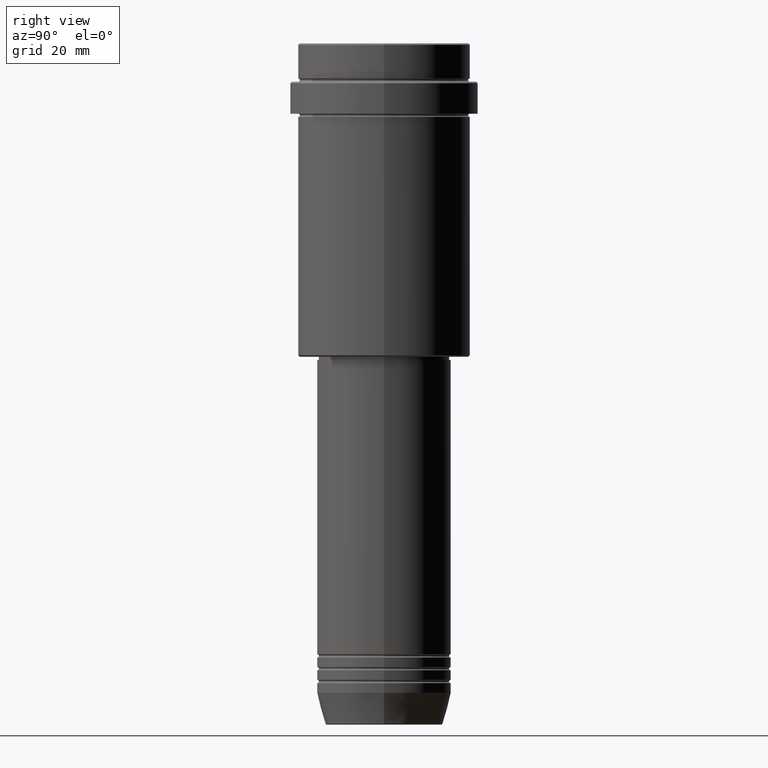
[diagram: clean part render]
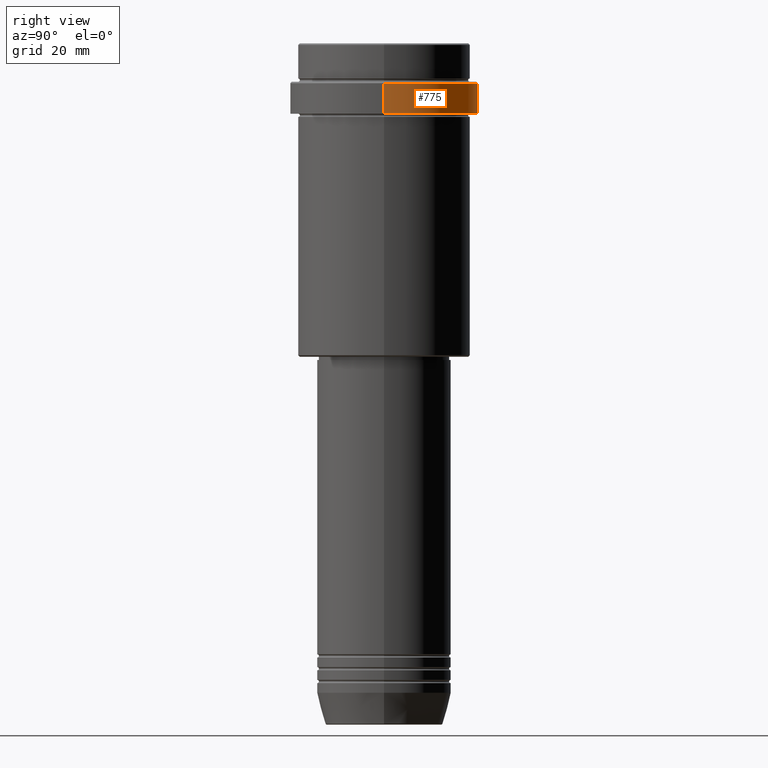
[diagram: same view with one face highlighted and labeled with its STEP entity id]
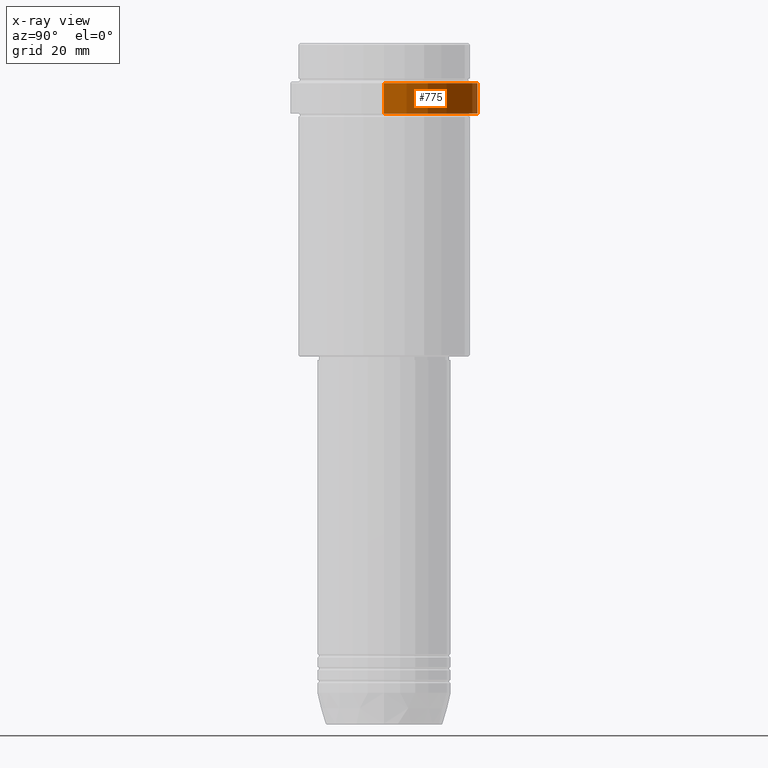
[diagram: x-ray of the same camera — body ghosted, the highlighted face saturated]
A machine part, right view. The second image highlights one B-rep face of the part: STEP entity #775.
The next image is the same camera in x-ray: the body ghosted, the highlighted face saturated — about 0% of this face is hidden behind the body in this view.
In plain terms, the highlighted cylindrical surface (partial cylindrical patch) has radius 29.5 mm, axis along (-0, -0, 1).
Its self-contained STEP definition (entity closure, byte-faithful):
#13 = DIRECTION ( 'NONE',  ( -0.000000000000000000, -0.000000000000000000, 1.000000000000000000 ) ) ;
#57 = DIRECTION ( 'NONE',  ( -0.000000000000000000, -0.000000000000000000, 1.000000000000000000 ) ) ;
#97 = CIRCLE ( 'NONE', #1034, 29.50000000000000000 ) ;
#195 = EDGE_CURVE ( 'NONE', #314, #571, #97, .T. ) ;
#201 = VECTOR ( 'NONE', #913, 1000.000000000000000 ) ;
#259 = DIRECTION ( 'NONE',  ( -0.000000000000000000, -0.000000000000000000, 1.000000000000000000 ) ) ;
#314 = VERTEX_POINT ( 'NONE', #911 ) ;
#365 = LINE ( 'NONE', #372, #201 ) ;
#370 = CARTESIAN_POINT ( 'NONE',  ( 0.000000000000000000, 0.000000000000000000, -12.50000000000003197 ) ) ;
#372 = CARTESIAN_POINT ( 'NONE',  ( 29.50000000000000000, 0.000000000000000000, 0.000000000000000000 ) ) ;
#376 = DIRECTION ( 'NONE',  ( 1.000000000000000000, 0.000000000000000000, 0.000000000000000000 ) ) ;
#448 = CIRCLE ( 'NONE', #1001, 29.49999999999999645 ) ;
#469 = CARTESIAN_POINT ( 'NONE',  ( 0.000000000000000000, 0.000000000000000000, 0.000000000000000000 ) ) ;
#535 = ORIENTED_EDGE ( 'NONE', *, *, #1131, .F. ) ;
#554 = ORIENTED_EDGE ( 'NONE', *, *, #923, .T. ) ;
#571 = VERTEX_POINT ( 'NONE', #1094 ) ;
#630 = CARTESIAN_POINT ( 'NONE',  ( 0.000000000000000000, 0.000000000000000000, -22.00000000000000711 ) ) ;
#640 = VERTEX_POINT ( 'NONE', #1122 ) ;
#760 = CARTESIAN_POINT ( 'NONE',  ( -29.49999999999999645, 3.612708057484690815E-15, -22.00000000000000711 ) ) ;
#767 = DIRECTION ( 'NONE',  ( 1.000000000000000000, 0.000000000000000000, 0.000000000000000000 ) ) ;
#775 = ADVANCED_FACE ( 'NONE', ( #1033 ), #1353, .T. ) ;
#829 = DIRECTION ( 'NONE',  ( 0.000000000000000000, 0.000000000000000000, -1.000000000000000000 ) ) ;
#839 = CARTESIAN_POINT ( 'NONE',  ( -29.50000000000000000, 3.612708057484691604E-15, 0.000000000000000000 ) ) ;
#844 = LINE ( 'NONE', #839, #980 ) ;
#877 = ORIENTED_EDGE ( 'NONE', *, *, #195, .T. ) ;
#889 = VERTEX_POINT ( 'NONE', #760 ) ;
#911 = CARTESIAN_POINT ( 'NONE',  ( -29.50000000000000000, 3.612708057484691604E-15, -12.50000000000003197 ) ) ;
#913 = DIRECTION ( 'NONE',  ( -0.000000000000000000, -0.000000000000000000, 1.000000000000000000 ) ) ;
#923 = EDGE_CURVE ( 'NONE', #640, #889, #448, .T. ) ;
#980 = VECTOR ( 'NONE', #259, 1000.000000000000000 ) ;
#1001 = AXIS2_PLACEMENT_3D ( 'NONE', #630, #13, #767 ) ;
#1033 = FACE_OUTER_BOUND ( 'NONE', #1406, .T. ) ;
#1034 = AXIS2_PLACEMENT_3D ( 'NONE', #370, #829, #376 ) ;
#1043 = DIRECTION ( 'NONE',  ( 1.000000000000000000, 0.000000000000000000, 0.000000000000000000 ) ) ;
#1094 = CARTESIAN_POINT ( 'NONE',  ( 29.50000000000000000, 0.000000000000000000, -12.50000000000003197 ) ) ;
#1122 = CARTESIAN_POINT ( 'NONE',  ( 29.49999999999999645, 0.000000000000000000, -22.00000000000000711 ) ) ;
#1131 = EDGE_CURVE ( 'NONE', #640, #571, #365, .T. ) ;
#1211 = AXIS2_PLACEMENT_3D ( 'NONE', #469, #57, #1043 ) ;
#1254 = EDGE_CURVE ( 'NONE', #889, #314, #844, .T. ) ;
#1353 = CYLINDRICAL_SURFACE ( 'NONE', #1211, 29.50000000000000000 ) ;
#1378 = ORIENTED_EDGE ( 'NONE', *, *, #1254, .T. ) ;
#1406 = EDGE_LOOP ( 'NONE', ( #554, #1378, #877, #535 ) ) ;